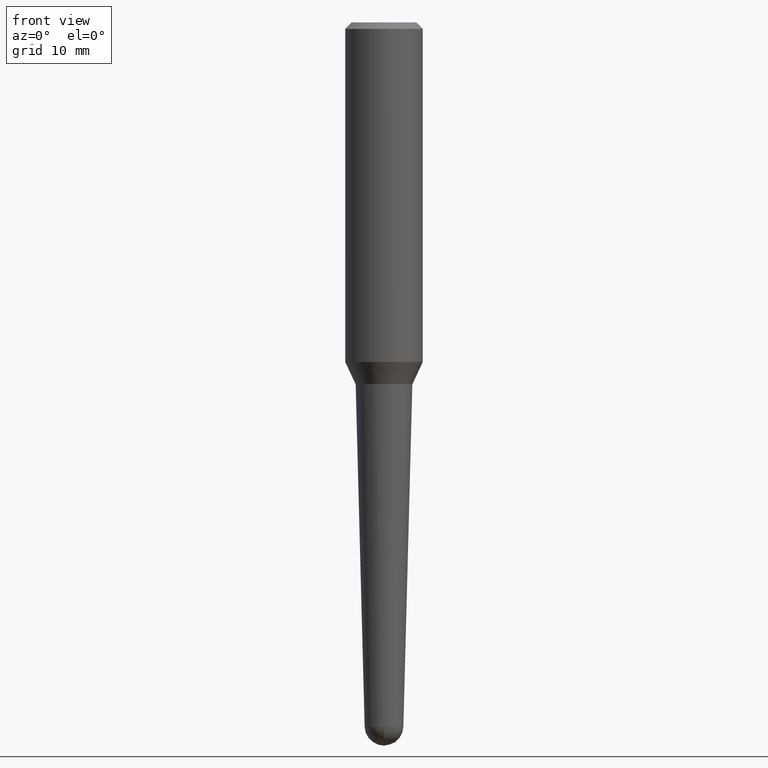
[diagram: clean part render]
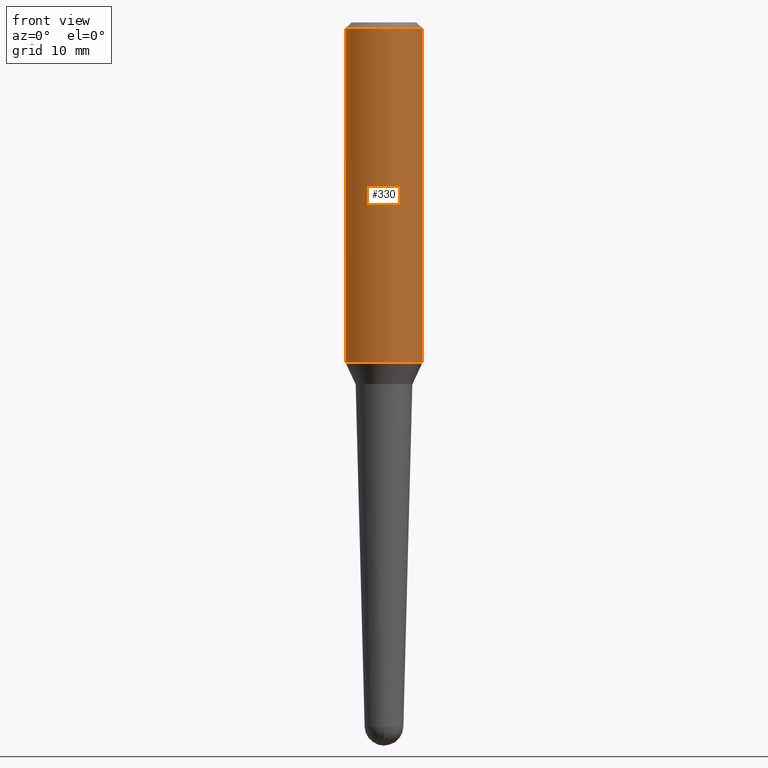
[diagram: same view with one face highlighted and labeled with its STEP entity id]
A machine part, front view. The second image highlights one B-rep face of the part: STEP entity #330.
In plain terms, the highlighted cylindrical surface (partial cylindrical patch) has radius 4.7625 mm, axis along (-0, 0, 1).
Its self-contained STEP definition (entity closure, byte-faithful):
#28 = AXIS2_PLACEMENT_3D ( 'NONE', #310, #90, #451 ) ;
#30 = ORIENTED_EDGE ( 'NONE', *, *, #246, .F. ) ;
#45 = EDGE_CURVE ( 'NONE', #355, #418, #358, .T. ) ;
#49 = VERTEX_POINT ( 'NONE', #69 ) ;
#51 = DIRECTION ( 'NONE',  ( 1.000000000000000000, -6.982962677686266711E-15, 0.000000000000000000 ) ) ;
#54 = CARTESIAN_POINT ( 'NONE',  ( -0.1875000000000001110, 1.332267629550190807E-15, 5.931196827434205055E-16 ) ) ;
#69 = CARTESIAN_POINT ( 'NONE',  ( -0.1874999999999999722, -1.591897828901198296E-15, -0.03125000000000003469 ) ) ;
#83 = VECTOR ( 'NONE', #419, 39.37007874015748143 ) ;
#90 = DIRECTION ( 'NONE',  ( -2.445468806185136597E-29, 3.491481338843145583E-15, 1.000000000000000000 ) ) ;
#109 = VECTOR ( 'NONE', #293, 39.37007874015748143 ) ;
#152 = LINE ( 'NONE', #54, #83 ) ;
#154 = FACE_OUTER_BOUND ( 'NONE', #445, .T. ) ;
#171 = CARTESIAN_POINT ( 'NONE',  ( 4.019809163081975824E-29, -5.739222125063926739E-15, -1.643778547865743178 ) ) ;
#178 = CIRCLE ( 'NONE', #395, 0.1874999999999999722 ) ;
#185 = CARTESIAN_POINT ( 'NONE',  ( 0.1875000000000002220, -7.048527627130101747E-15, -1.643778547865743178 ) ) ;
#194 = CARTESIAN_POINT ( 'NONE',  ( 0.1874999999999999722, -1.418414293905023123E-15, -0.03125000000000003469 ) ) ;
#211 = ORIENTED_EDGE ( 'NONE', *, *, #372, .F. ) ;
#227 = ORIENTED_EDGE ( 'NONE', *, *, #433, .T. ) ;
#244 = DIRECTION ( 'NONE',  ( 1.000000000000000000, -6.982962677686265133E-15, 0.000000000000000000 ) ) ;
#246 = EDGE_CURVE ( 'NONE', #49, #344, #178, .T. ) ;
#250 = DIRECTION ( 'NONE',  ( -2.445468806185136597E-29, 3.491481338843145583E-15, 1.000000000000000000 ) ) ;
#270 = CYLINDRICAL_SURFACE ( 'NONE', #28, 0.1875000000000001110 ) ;
#293 = DIRECTION ( 'NONE',  ( -2.445468806185136877E-29, 3.491481338843145188E-15, 1.000000000000000000 ) ) ;
#310 = CARTESIAN_POINT ( 'NONE',  ( -1.450455682483482035E-44, 2.070866303999251778E-30, 5.931196827434296760E-16 ) ) ;
#330 = ADVANCED_FACE ( 'NONE', ( #154 ), #270, .T. ) ;
#340 = LINE ( 'NONE', #416, #109 ) ;
#341 = CARTESIAN_POINT ( 'NONE',  ( -0.1875000000000002220, -4.406954495513735735E-15, -1.643778547865743178 ) ) ;
#344 = VERTEX_POINT ( 'NONE', #194 ) ;
#355 = VERTEX_POINT ( 'NONE', #341 ) ;
#358 = CIRCLE ( 'NONE', #401, 0.1875000000000002220 ) ;
#363 = CARTESIAN_POINT ( 'NONE',  ( 7.642090019328561499E-31, -1.091087918388484350E-16, -0.03125000000000003469 ) ) ;
#372 = EDGE_CURVE ( 'NONE', #355, #49, #152, .T. ) ;
#395 = AXIS2_PLACEMENT_3D ( 'NONE', #363, #453, #51 ) ;
#401 = AXIS2_PLACEMENT_3D ( 'NONE', #171, #250, #244 ) ;
#416 = CARTESIAN_POINT ( 'NONE',  ( 0.1875000000000001110, -1.309305502066173628E-15, 5.931196827434387479E-16 ) ) ;
#418 = VERTEX_POINT ( 'NONE', #185 ) ;
#419 = DIRECTION ( 'NONE',  ( -2.445468806185136877E-29, 3.491481338843145188E-15, 1.000000000000000000 ) ) ;
#425 = ORIENTED_EDGE ( 'NONE', *, *, #45, .T. ) ;
#433 = EDGE_CURVE ( 'NONE', #418, #344, #340, .T. ) ;
#445 = EDGE_LOOP ( 'NONE', ( #211, #425, #227, #30 ) ) ;
#451 = DIRECTION ( 'NONE',  ( 1.000000000000000000, -6.982962677686266711E-15, 4.852736867747363404E-29 ) ) ;
#453 = DIRECTION ( 'NONE',  ( -2.445468806185136597E-29, 3.491481338843145583E-15, 1.000000000000000000 ) ) ;